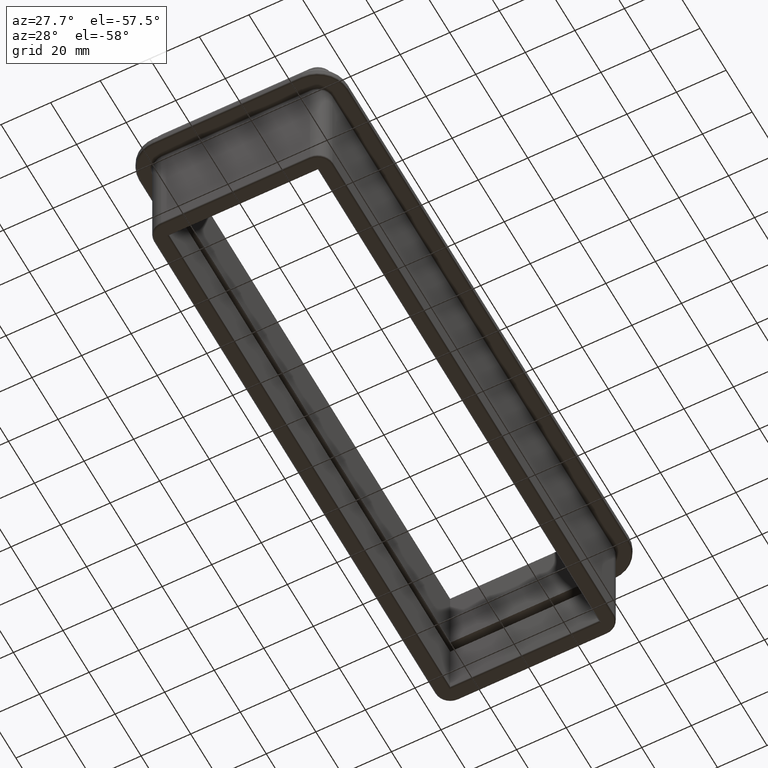
[diagram: clean part render]
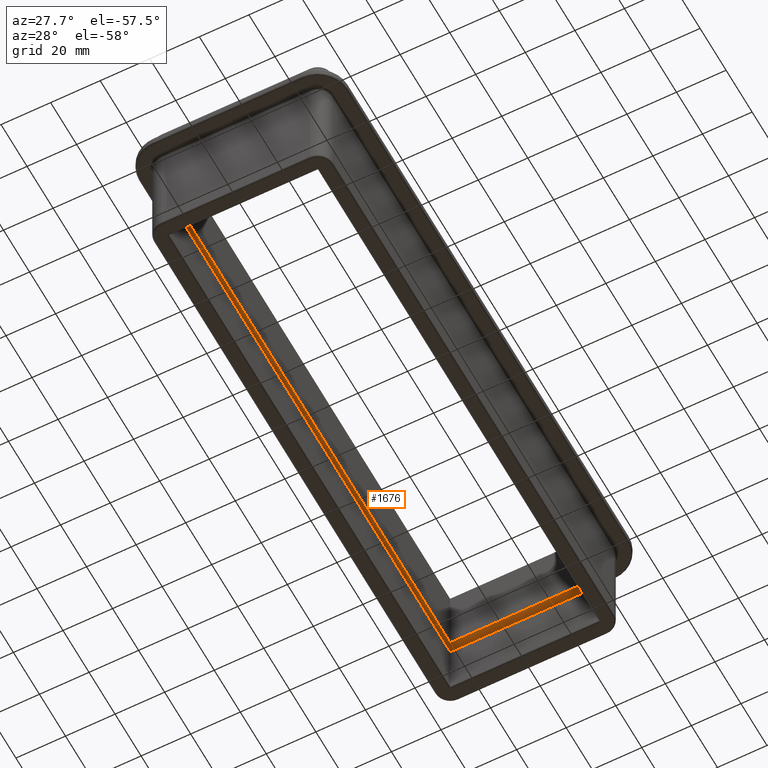
[diagram: same view with one face highlighted and labeled with its STEP entity id]
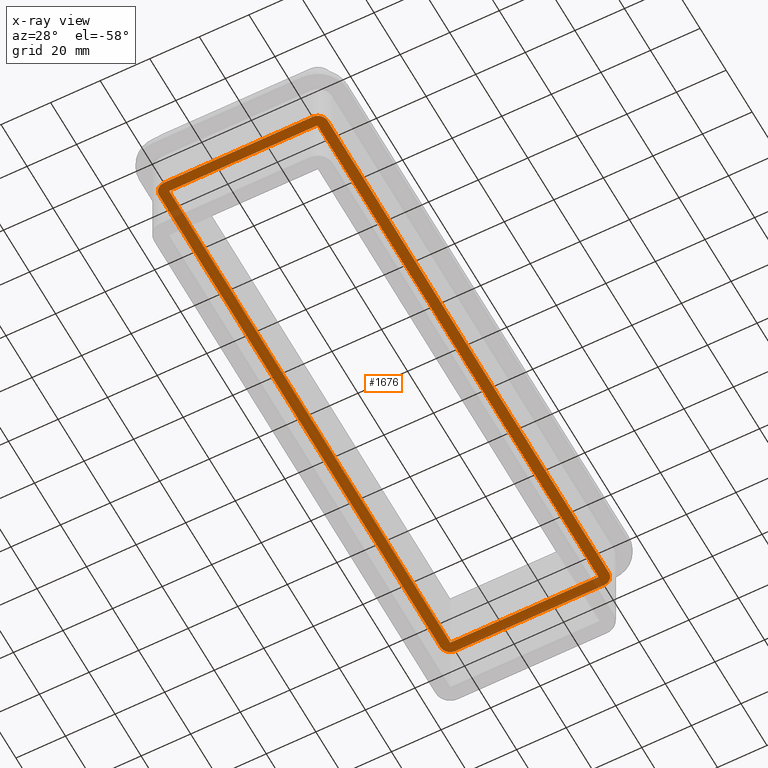
[diagram: x-ray of the same camera — body ghosted, the highlighted face saturated]
A machine part, auxiliary view. The second image highlights one B-rep face of the part: STEP entity #1676.
The next image is the same camera in x-ray: the body ghosted, the highlighted face saturated — about 3% of this face is hidden behind the body in this view.
In plain terms, the highlighted planar face has unit normal (0, 0, -1).
Its self-contained STEP definition (entity closure, byte-faithful):
#26=FACE_BOUND('',#302,.T.);
#55=PLANE('',#1914);
#189=FACE_OUTER_BOUND('',#301,.T.);
#301=EDGE_LOOP('',(#1476,#1477,#1478,#1479,#1480,#1481,#1482,#1483));
#302=EDGE_LOOP('',(#1484,#1485,#1486,#1487));
#385=LINE('',#2817,#513);
#388=LINE('',#2822,#516);
#415=LINE('',#2919,#543);
#418=LINE('',#2924,#546);
#421=LINE('',#2936,#549);
#427=LINE('',#2952,#555);
#434=LINE('',#2966,#562);
#435=LINE('',#2968,#563);
#513=VECTOR('',#2303,10.);
#516=VECTOR('',#2308,10.);
#543=VECTOR('',#2419,10.);
#546=VECTOR('',#2424,10.);
#549=VECTOR('',#2437,10.);
#555=VECTOR('',#2455,10.);
#562=VECTOR('',#2470,10.);
#563=VECTOR('',#2473,10.);
#663=CIRCLE('',#1895,3.99999999999989);
#665=CIRCLE('',#1901,3.9999999999999);
#667=CIRCLE('',#1907,3.99999999999988);
#669=CIRCLE('',#1915,3.99999999999996);
#764=VERTEX_POINT('',#2814);
#765=VERTEX_POINT('',#2816);
#766=VERTEX_POINT('',#2820);
#790=VERTEX_POINT('',#2906);
#791=VERTEX_POINT('',#2908);
#794=VERTEX_POINT('',#2917);
#795=VERTEX_POINT('',#2922);
#797=VERTEX_POINT('',#2927);
#799=VERTEX_POINT('',#2934);
#801=VERTEX_POINT('',#2942);
#803=VERTEX_POINT('',#2950);
#806=VERTEX_POINT('',#2965);
#966=EDGE_CURVE('',#765,#764,#385,.T.);
#969=EDGE_CURVE('',#764,#766,#388,.T.);
#1011=EDGE_CURVE('',#790,#791,#663,.T.);
#1016=EDGE_CURVE('',#794,#790,#415,.T.);
#1019=EDGE_CURVE('',#766,#795,#418,.T.);
#1021=EDGE_CURVE('',#797,#794,#665,.T.);
#1024=EDGE_CURVE('',#799,#797,#421,.T.);
#1028=EDGE_CURVE('',#801,#799,#667,.T.);
#1032=EDGE_CURVE('',#803,#801,#427,.T.);
#1039=EDGE_CURVE('',#791,#806,#434,.T.);
#1040=EDGE_CURVE('',#806,#803,#669,.T.);
#1041=EDGE_CURVE('',#795,#765,#435,.T.);
#1476=ORIENTED_EDGE('',*,*,#1039,.F.);
#1477=ORIENTED_EDGE('',*,*,#1011,.F.);
#1478=ORIENTED_EDGE('',*,*,#1016,.F.);
#1479=ORIENTED_EDGE('',*,*,#1021,.F.);
#1480=ORIENTED_EDGE('',*,*,#1024,.F.);
#1481=ORIENTED_EDGE('',*,*,#1028,.F.);
#1482=ORIENTED_EDGE('',*,*,#1032,.F.);
#1483=ORIENTED_EDGE('',*,*,#1040,.F.);
#1484=ORIENTED_EDGE('',*,*,#966,.T.);
#1485=ORIENTED_EDGE('',*,*,#969,.T.);
#1486=ORIENTED_EDGE('',*,*,#1019,.T.);
#1487=ORIENTED_EDGE('',*,*,#1041,.T.);
#1676=ADVANCED_FACE('',(#189,#26),#55,.T.);
#1895=AXIS2_PLACEMENT_3D('',#2909,#2408,#2409);
#1901=AXIS2_PLACEMENT_3D('',#2929,#2428,#2429);
#1907=AXIS2_PLACEMENT_3D('',#2944,#2445,#2446);
#1914=AXIS2_PLACEMENT_3D('',#2964,#2468,#2469);
#1915=AXIS2_PLACEMENT_3D('',#2967,#2471,#2472);
#2303=DIRECTION('',(1.,3.08842001584351E-16,0.));
#2308=DIRECTION('',(-2.0649029034457E-16,1.,0.));
#2408=DIRECTION('center_axis',(0.,0.,1.));
#2409=DIRECTION('ref_axis',(1.83697019872103E-16,1.,0.));
#2419=DIRECTION('',(-1.,3.56672832554154E-17,0.));
#2424=DIRECTION('',(-1.,3.56672832554154E-17,0.));
#2428=DIRECTION('center_axis',(-1.17372561583342E-61,-1.17372561583342E-61,
1.));
#2429=DIRECTION('ref_axis',(1.,0.,1.21543267145728E-61));
#2437=DIRECTION('',(-2.0649029034457E-16,1.,0.));
#2445=DIRECTION('center_axis',(-1.17372561583341E-61,1.17372561583341E-61,
1.));
#2446=DIRECTION('ref_axis',(-4.44089209850076E-15,-1.,1.21543267145729E-61));
#2455=DIRECTION('',(1.,3.08842001584351E-16,0.));
#2468=DIRECTION('center_axis',(0.,0.,-1.));
#2469=DIRECTION('ref_axis',(-1.,0.,0.));
#2470=DIRECTION('',(3.08395284618099E-16,-1.,0.));
#2471=DIRECTION('center_axis',(0.,0.,1.));
#2472=DIRECTION('ref_axis',(-1.,-4.44089209850067E-15,0.));
#2473=DIRECTION('',(3.08395284618099E-16,-1.,0.));
#2814=CARTESIAN_POINT('',(30.,-108.,-1.02168426782703E-15));
#2816=CARTESIAN_POINT('',(-29.9999999999999,-108.,-1.02168426782703E-15));
#2817=CARTESIAN_POINT('',(-30.,-108.,-1.02168426782703E-15));
#2820=CARTESIAN_POINT('',(29.9999999999999,108.,-1.02168426782703E-15));
#2822=CARTESIAN_POINT('',(29.9999999999999,-108.,-1.02168426782703E-15));
#2906=CARTESIAN_POINT('',(-30.,112.,8.75811540203011E-46));
#2908=CARTESIAN_POINT('',(-34.,108.,8.75811540203011E-46));
#2909=CARTESIAN_POINT('Origin',(-30.,108.,8.75811540203011E-46));
#2917=CARTESIAN_POINT('',(30.,112.,8.75811540203011E-46));
#2919=CARTESIAN_POINT('',(30.,112.,8.75811540203011E-46));
#2922=CARTESIAN_POINT('',(-30.,108.,-1.02168426782703E-15));
#2924=CARTESIAN_POINT('',(30.,108.,-1.02168426782703E-15));
#2927=CARTESIAN_POINT('',(33.9999999999999,108.,8.75811540203011E-46));
#2929=CARTESIAN_POINT('Origin',(30.,108.,8.7581154020301E-46));
#2934=CARTESIAN_POINT('',(33.9999999999999,-108.,8.75811540203011E-46));
#2936=CARTESIAN_POINT('',(33.9999999999999,-108.,8.75811540203011E-46));
#2942=CARTESIAN_POINT('',(30.,-112.,8.75811540203011E-46));
#2944=CARTESIAN_POINT('Origin',(30.,-108.,8.7581154020301E-46));
#2950=CARTESIAN_POINT('',(-30.,-112.,8.75811540203011E-46));
#2952=CARTESIAN_POINT('',(-30.,-112.,8.75811540203011E-46));
#2964=CARTESIAN_POINT('Origin',(-33.9999999999999,-108.,-1.23259516440783E-31));
#2965=CARTESIAN_POINT('',(-33.9999999999999,-108.,8.75811540203011E-46));
#2966=CARTESIAN_POINT('',(-34.,108.,8.75811540203011E-46));
#2967=CARTESIAN_POINT('Origin',(-29.9999999999999,-108.,8.75811540203011E-46));
#2968=CARTESIAN_POINT('',(-30.,108.,-1.02168426782703E-15));